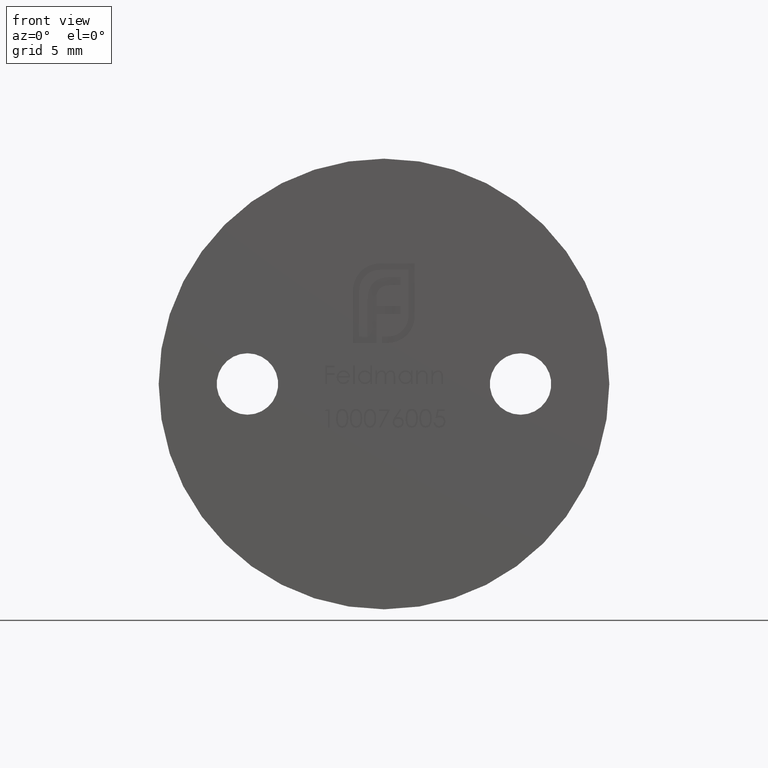
[diagram: clean part render]
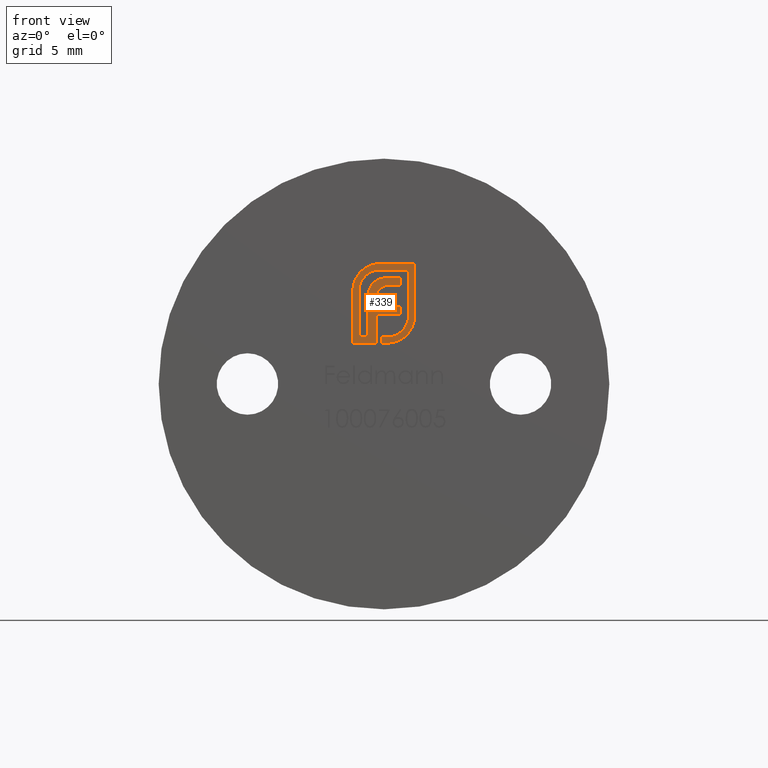
[diagram: same view with one face highlighted and labeled with its STEP entity id]
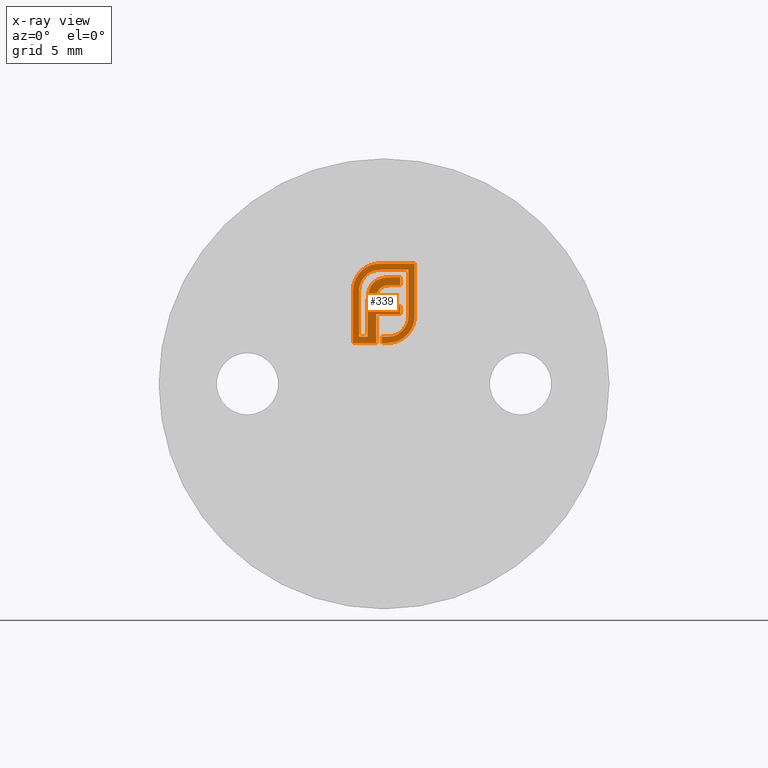
[diagram: x-ray of the same camera — body ghosted, the highlighted face saturated]
A machine part, front view. The second image highlights one B-rep face of the part: STEP entity #339.
The next image is the same camera in x-ray: the body ghosted, the highlighted face saturated — about 0% of this face is hidden behind the body in this view.
In plain terms, the highlighted planar face has unit normal (0, -1, 0).
Its self-contained STEP definition (entity closure, byte-faithful):
#53 = ORIENTED_EDGE ( 'NONE', *, *, #2313, .F. ) ;
#89 = CARTESIAN_POINT ( 'NONE',  ( 1.533706581315729345, 0.1000000000000000056, 4.130711595041846707 ) ) ;
#90 = CARTESIAN_POINT ( 'NONE',  ( -0.8595754606951256926, 0.1000000000000000056, 8.731280615815254720 ) ) ;
#132 = CARTESIAN_POINT ( 'NONE',  ( -0.2511997499500289166, 0.1000000000000000056, 7.028425111272786907 ) ) ;
#184 = ORIENTED_EDGE ( 'NONE', *, *, #8891, .F. ) ;
#196 = CARTESIAN_POINT ( 'NONE',  ( -0.2943272463131331729, 0.1000000000000000056, 6.988127464454253257 ) ) ;
#248 = VERTEX_POINT ( 'NONE', #5400 ) ;
#308 = CARTESIAN_POINT ( 'NONE',  ( -0.01749475157452858379, 0.1000000000000000056, 7.156752974107765120 ) ) ;
#339 = ADVANCED_FACE ( 'NONE', ( #10361 ), #9381, .T. ) ;
#352 = LINE ( 'NONE', #2891, #2618 ) ;
#359 = CARTESIAN_POINT ( 'NONE',  ( 0.3549111840445971500, 0.1000000000000000056, 7.219203199633334123 ) ) ;
#369 = LINE ( 'NONE', #8767, #4680 ) ;
#371 = CARTESIAN_POINT ( 'NONE',  ( 0.06181478889666359999, 0.1000000000000000056, 3.457196174480987150 ) ) ;
#375 = VERTEX_POINT ( 'NONE', #15595 ) ;
#395 = EDGE_CURVE ( 'NONE', #248, #3817, #12490, .T. ) ;
#459 = ORIENTED_EDGE ( 'NONE', *, *, #2235, .F. ) ;
#463 = CARTESIAN_POINT ( 'NONE',  ( -0.7802659202239338176, 0.1000000000000000056, 7.400513179379517581 ) ) ;
#591 = EDGE_CURVE ( 'NONE', #12907, #12661, #3924, .T. ) ;
#654 = ORIENTED_EDGE ( 'NONE', *, *, #9390, .F. ) ;
#663 = ORIENTED_EDGE ( 'NONE', *, *, #2294, .F. ) ;
#680 = VERTEX_POINT ( 'NONE', #13869 ) ;
#687 = EDGE_CURVE ( 'NONE', #14384, #13681, #3501, .T. ) ;
#694 = EDGE_CURVE ( 'NONE', #3641, #680, #4711, .T. ) ;
#732 = B_SPLINE_CURVE_WITH_KNOTS ( 'NONE', 3,
 ( #7549, #8552, #9751, #7660, #11372, #13810, #13667 ),
 .UNSPECIFIED., .F., .F.,
 ( 4, 1, 1, 1, 4 ),
 ( 0.000000000000000000, 0.2411211622112615915, 0.4851305330037717356, 0.7363631959406383709, 1.000000000000000000 ),
 .UNSPECIFIED. ) ;
#755 = CARTESIAN_POINT ( 'NONE',  ( -1.197807324469326806, 0.1000000000000000056, 3.457196174480987150 ) ) ;
#766 = CARTESIAN_POINT ( 'NONE',  ( -1.414593789907671706, 0.1000000000000000056, 8.465605682340873628 ) ) ;
#778 = EDGE_CURVE ( 'NONE', #11103, #5335, #7147, .T. ) ;
#805 = CARTESIAN_POINT ( 'NONE',  ( 0.7895964543970133143, 0.1000000000000000056, 7.219734079776062963 ) ) ;
#820 = ORIENTED_EDGE ( 'NONE', *, *, #5564, .F. ) ;
#837 = CARTESIAN_POINT ( 'NONE',  ( 2.200685975968466934, 0.1000000000000000056, 4.551491616197589352 ) ) ;
#882 = CARTESIAN_POINT ( 'NONE',  ( 1.131136071292682788, 0.1000000000000000056, 3.198364730874929229 ) ) ;
#907 = CARTESIAN_POINT ( 'NONE',  ( -1.886391188140328579, 0.1000000000000000056, 8.021008894316823401 ) ) ;
#1121 = ORIENTED_EDGE ( 'NONE', *, *, #12243, .F. ) ;
#1166 = ORIENTED_EDGE ( 'NONE', *, *, #591, .F. ) ;
#1203 = B_SPLINE_CURVE_WITH_KNOTS ( 'NONE', 3,
 ( #9292, #6969, #12932, #14181, #837, #14289, #2048 ),
 .UNSPECIFIED., .F., .F.,
 ( 4, 1, 1, 1, 4 ),
 ( 0.000000000000000000, 0.2525049582863197473, 0.5021773156323383613, 0.7501012456036268983, 1.000000000000000000 ),
 .UNSPECIFIED. ) ;
#1231 = CARTESIAN_POINT ( 'NONE',  ( 0.3918824352694182389, 0.1000000000000000056, 7.219734079776064739 ) ) ;
#1238 = CARTESIAN_POINT ( 'NONE',  ( 1.187310473524608501, 0.1000000000000000056, 5.109867039888031037 ) ) ;
#1416 = ORIENTED_EDGE ( 'NONE', *, *, #778, .F. ) ;
#1452 = CARTESIAN_POINT ( 'NONE',  ( -0.04536225042950945557, 0.1000000000000000056, 7.145672816739518041 ) ) ;
#1458 = LINE ( 'NONE', #5659, #15095 ) ;
#1624 = CARTESIAN_POINT ( 'NONE',  ( -1.710319768859262846, 0.1000000000000000056, 7.418931424541738373 ) ) ;
#1643 = CARTESIAN_POINT ( 'NONE',  ( -0.3549974557226163174, 0.1000000000000000056, 8.809824298173680290 ) ) ;
#1671 = CARTESIAN_POINT ( 'NONE',  ( 0.2740844413342655161, 0.1000000000000000056, 3.457196174480987150 ) ) ;
#1680 = CARTESIAN_POINT ( 'NONE',  ( 1.187310473524608501, 0.1000000000000000056, 5.404945183111729889 ) ) ;
#1821 = CARTESIAN_POINT ( 'NONE',  ( 0.3250984827990785475, 0.1000000000000000056, 3.458456206920311971 ) ) ;
#1832 = CARTESIAN_POINT ( 'NONE',  ( 0.2980672456303922746, 0.1000000000000000056, 7.815756469842717102 ) ) ;
#1878 = LINE ( 'NONE', #371, #11384 ) ;
#1980 = CARTESIAN_POINT ( 'NONE',  ( 1.785630977373454220, 0.1000000000000000056, 6.661068346162817733 ) ) ;
#2016 = LINE ( 'NONE', #13666, #2972 ) ;
#2048 = CARTESIAN_POINT ( 'NONE',  ( 2.163517611383251271, 0.1000000000000000056, 4.417074877536736999 ) ) ;
#2065 = DIRECTION ( 'NONE',  ( -2.734102772614910103E-15, -0.000000000000000000, 1.000000000000000000 ) ) ;
#2087 = CARTESIAN_POINT ( 'NONE',  ( 1.313036953868959911, 0.1000000000000000056, 3.303734612586362029 ) ) ;
#2120 = B_SPLINE_CURVE_WITH_KNOTS ( 'NONE', 3,
 ( #9413, #14355, #15578, #3492, #14415, #15623, #2497 ),
 .UNSPECIFIED., .F., .F.,
 ( 4, 1, 1, 1, 4 ),
 ( 0.000000000000000000, 0.2752367449667307842, 0.5313220627563629561, 0.7730509928784798923, 1.000000000000000000 ),
 .UNSPECIFIED. ) ;
#2146 = DIRECTION ( 'NONE',  ( 0.000000000000000000, -1.000000000000000000, 0.000000000000000000 ) ) ;
#2164 = VERTEX_POINT ( 'NONE', #5061 ) ;
#2235 = EDGE_CURVE ( 'NONE', #14204, #12907, #2506, .T. ) ;
#2294 = EDGE_CURVE ( 'NONE', #375, #2164, #2016, .T. ) ;
#2313 = EDGE_CURVE ( 'NONE', #10625, #7563, #4852, .T. ) ;
#2317 = VERTEX_POINT ( 'NONE', #9892 ) ;
#2387 = CARTESIAN_POINT ( 'NONE',  ( -2.261054889181854488, 0.1000000000000000056, 7.099617897534928446 ) ) ;
#2445 = CARTESIAN_POINT ( 'NONE',  ( -2.276650338231864801, 0.1000000000000000056, 6.841847445766267910 ) ) ;
#2460 = CARTESIAN_POINT ( 'NONE',  ( -0.7802659202239338176, 0.1000000000000000056, 7.400513179379517581 ) ) ;
#2497 = CARTESIAN_POINT ( 'NONE',  ( -1.095171448565431360, 0.1000000000000000056, 6.881502216001865513 ) ) ;
#2501 = CARTESIAN_POINT ( 'NONE',  ( -2.212494932037212259, 0.1000000000000000056, 7.347826189786742290 ) ) ;
#2506 = B_SPLINE_CURVE_WITH_KNOTS ( 'NONE', 3,
 ( #5337, #13766, #14903, #4087, #10025, #1624, #14858, #6495, #7610, #2945, #11313 ),
 .UNSPECIFIED., .F., .F.,
 ( 4, 1, 1, 1, 1, 1, 1, 1, 4 ),
 ( 0.000000000000000000, 0.1299147880206159289, 0.2554450878987835072, 0.3781545628213979215, 0.5004347043268618789, 0.6221840494551676981, 0.7449768315553531028, 0.8705846910948458195, 1.000000000000000000 ),
 .UNSPECIFIED. ) ;
#2509 = AXIS2_PLACEMENT_3D ( 'NONE', #5637, #2146, #14233 ) ;
#2548 = EDGE_CURVE ( 'NONE', #14227, #5206, #9002, .T. ) ;
#2585 = VECTOR ( 'NONE', #15410, 1000.000000000000000 ) ;
#2618 = VECTOR ( 'NONE', #7885, 1000.000000000000000 ) ;
#2670 = ORIENTED_EDGE ( 'NONE', *, *, #7001, .F. ) ;
#2680 = VERTEX_POINT ( 'NONE', #14488 ) ;
#2810 = CARTESIAN_POINT ( 'NONE',  ( -1.095171448565431360, 0.1000000000000000056, 6.881502216001865513 ) ) ;
#2891 = CARTESIAN_POINT ( 'NONE',  ( -0.5679962677863316101, 0.1000000000000000056, 4.283531607184509760 ) ) ;
#2921 = EDGE_CURVE ( 'NONE', #11710, #15426, #10017, .T. ) ;
#2945 = CARTESIAN_POINT ( 'NONE',  ( -1.818194131311550832, 0.1000000000000000056, 6.892861487231079387 ) ) ;
#2972 = VECTOR ( 'NONE', #4135, 1000.000000000000000 ) ;
#2989 = CARTESIAN_POINT ( 'NONE',  ( 0.3918824352694182389, 0.1000000000000000056, 7.219734079776064739 ) ) ;
#3005 = CARTESIAN_POINT ( 'NONE',  ( 0.1034013256918231843, 0.1000000000000000056, 7.794583868466728127 ) ) ;
#3048 = CARTESIAN_POINT ( 'NONE',  ( -0.5679962677863316101, 0.1000000000000000056, 6.243526941917422413 ) ) ;
#3059 = EDGE_CURVE ( 'NONE', #2680, #11710, #3832, .T. ) ;
#3090 = CARTESIAN_POINT ( 'NONE',  ( 1.943083741544202381, 0.1000000000000000056, 3.936552367623044280 ) ) ;
#3091 = CARTESIAN_POINT ( 'NONE',  ( 0.2740844413342655161, 0.1000000000000000056, 3.457196174480987150 ) ) ;
#3093 = CARTESIAN_POINT ( 'NONE',  ( -1.020265024799605014, 0.1000000000000000056, 8.180686189883639159 ) ) ;
#3096 = CARTESIAN_POINT ( 'NONE',  ( 1.453577762708337939, 0.1000000000000000056, 3.390239697436863597 ) ) ;
#3166 = VECTOR ( 'NONE', #13396, 1000.000000000000000 ) ;
#3188 = CARTESIAN_POINT ( 'NONE',  ( 1.106387187045389631, 0.1000000000000000056, 3.704793545018288281 ) ) ;
#3417 = VECTOR ( 'NONE', #14645, 1000.000000000000000 ) ;
#3492 = CARTESIAN_POINT ( 'NONE',  ( -1.175144119213104910, 0.1000000000000000056, 6.535361911055932893 ) ) ;
#3501 = B_SPLINE_CURVE_WITH_KNOTS ( 'NONE', 3,
 ( #7613, #12557, #9010, #7809, #11373, #8814, #463 ),
 .UNSPECIFIED., .F., .F.,
 ( 4, 1, 1, 1, 4 ),
 ( 0.000000000000000000, 0.2650465622674541000, 0.5182727197139305186, 0.7624607574988783165, 1.000000000000000000 ),
 .UNSPECIFIED. ) ;
#3530 = ORIENTED_EDGE ( 'NONE', *, *, #11169, .F. ) ;
#3545 = CARTESIAN_POINT ( 'NONE',  ( 2.012737442929558807, 0.1000000000000000056, 4.048426834626967619 ) ) ;
#3641 = VERTEX_POINT ( 'NONE', #1231 ) ;
#3763 = VERTEX_POINT ( 'NONE', #14318 ) ;
#3769 = CARTESIAN_POINT ( 'NONE',  ( -2.276232496197875044, 0.1000000000000000056, 6.885432932975001030 ) ) ;
#3785 = VECTOR ( 'NONE', #9370, 1000.000000000000000 ) ;
#3817 = VERTEX_POINT ( 'NONE', #11421 ) ;
#3832 = B_SPLINE_CURVE_WITH_KNOTS ( 'NONE', 3,
 ( #6944, #7109, #13059, #8219, #3545, #9522, #13006 ),
 .UNSPECIFIED., .F., .F.,
 ( 4, 1, 1, 1, 4 ),
 ( 0.000000000000000000, 0.2531688454537565636, 0.5035614958825502807, 0.7514299623983494714, 1.000000000000000000 ),
 .UNSPECIFIED. ) ;
#3845 = CARTESIAN_POINT ( 'NONE',  ( 1.785630977373454220, 0.1000000000000000056, 4.968742710520175798 ) ) ;
#3859 = DIRECTION ( 'NONE',  ( 0.000000000000000000, -0.000000000000000000, -1.000000000000000000 ) ) ;
#3924 = LINE ( 'NONE', #13182, #9218 ) ;
#3963 = CARTESIAN_POINT ( 'NONE',  ( -2.276650338231864801, 0.1000000000000000056, 6.841847445766267910 ) ) ;
#3973 = CARTESIAN_POINT ( 'NONE',  ( -0.3160718451131333540, 0.1000000000000000056, 6.967809657102867149 ) ) ;
#4052 = CARTESIAN_POINT ( 'NONE',  ( -0.5670404246736944209, 0.1000000000000000056, 6.356691832203200221 ) ) ;
#4081 = VERTEX_POINT ( 'NONE', #10736 ) ;
#4087 = CARTESIAN_POINT ( 'NONE',  ( -1.571856793213572523, 0.1000000000000000056, 7.674150191477392191 ) ) ;
#4135 = DIRECTION ( 'NONE',  ( -1.000000000000000000, -0.000000000000000000, 2.788784828067216714E-14 ) ) ;
#4198 = CARTESIAN_POINT ( 'NONE',  ( -0.2449265220433880230, 0.1000000000000000056, 7.715418707721015679 ) ) ;
#4329 = ORIENTED_EDGE ( 'NONE', *, *, #2548, .F. ) ;
#4364 = LINE ( 'NONE', #13471, #6852 ) ;
#4430 = CARTESIAN_POINT ( 'NONE',  ( 0.01343570162570312775, 0.1000000000000000056, 7.166733782436140565 ) ) ;
#4442 = CARTESIAN_POINT ( 'NONE',  ( -0.5679962677863316101, 0.1000000000000000056, 2.999999999999997780 ) ) ;
#4462 = EDGE_CURVE ( 'NONE', #5206, #11279, #11364, .T. ) ;
#4476 = ORIENTED_EDGE ( 'NONE', *, *, #5519, .F. ) ;
#4477 = VECTOR ( 'NONE', #6596, 1000.000000000000000 ) ;
#4485 = CARTESIAN_POINT ( 'NONE',  ( -2.016561698157220306, 0.1000000000000000056, 7.809890366223464220 ) ) ;
#4544 = EDGE_CURVE ( 'NONE', #6865, #10625, #14583, .T. ) ;
#4547 = CARTESIAN_POINT ( 'NONE',  ( -1.347095871238629394, 0.1000000000000000056, 8.510846745976204275 ) ) ;
#4551 = VECTOR ( 'NONE', #7068, 1000.000000000000000 ) ;
#4575 = CARTESIAN_POINT ( 'NONE',  ( 1.016972281842246861, 0.1000000000000000056, 3.144449828605777597 ) ) ;
#4580 = ORIENTED_EDGE ( 'NONE', *, *, #4462, .F. ) ;
#4680 = VECTOR ( 'NONE', #6292, 1000.000000000000000 ) ;
#4693 = ORIENTED_EDGE ( 'NONE', *, *, #9940, .F. ) ;
#4711 = B_SPLINE_CURVE_WITH_KNOTS ( 'NONE', 3,
 ( #2989, #359, #15261, #5526, #6695, #4430, #6848 ),
 .UNSPECIFIED., .F., .F.,
 ( 4, 1, 1, 1, 4 ),
 ( 0.000000000000000000, 0.2663974462967133028, 0.5202005568595402529, 0.7659044003744396312, 1.000000000000000000 ),
 .UNSPECIFIED. ) ;
#4780 = VERTEX_POINT ( 'NONE', #3048 ) ;
#4812 = CARTESIAN_POINT ( 'NONE',  ( -1.197807324469326806, 0.1000000000000000056, 6.140891066013526967 ) ) ;
#4830 = ORIENTED_EDGE ( 'NONE', *, *, #7114, .F. ) ;
#4852 = LINE ( 'NONE', #8782, #8069 ) ;
#4895 = CARTESIAN_POINT ( 'NONE',  ( -0.3160718451131333540, 0.1000000000000000056, 6.967809657102867149 ) ) ;
#4899 = CARTESIAN_POINT ( 'NONE',  ( 1.187310473524608501, 0.1000000000000000056, 7.219734079776064739 ) ) ;
#4904 = CARTESIAN_POINT ( 'NONE',  ( 1.372398133326241165, 0.1000000000000000056, 3.935465311587731385 ) ) ;
#4912 = ORIENTED_EDGE ( 'NONE', *, *, #5210, .F. ) ;
#4954 = EDGE_CURVE ( 'NONE', #11371, #9696, #12596, .T. ) ;
#5061 = CARTESIAN_POINT ( 'NONE',  ( -0.3079076277116873928, 0.1000000000000000056, 8.353393981805457003 ) ) ;
#5194 = CARTESIAN_POINT ( 'NONE',  ( -0.3079076277116873928, 0.1000000000000000056, 8.810590156286446373 ) ) ;
#5206 = VERTEX_POINT ( 'NONE', #8032 ) ;
#5210 = EDGE_CURVE ( 'NONE', #15426, #10789, #15204, .T. ) ;
#5295 = CARTESIAN_POINT ( 'NONE',  ( 1.242127361791461881, 0.1000000000000000056, 3.260088640074642274 ) ) ;
#5323 = VERTEX_POINT ( 'NONE', #1238 ) ;
#5335 = VERTEX_POINT ( 'NONE', #5602 ) ;
#5337 = CARTESIAN_POINT ( 'NONE',  ( -1.378586424072778982, 0.1000000000000000056, 7.904362024725913649 ) ) ;
#5348 = CARTESIAN_POINT ( 'NONE',  ( -0.5050151621180319905, 0.1000000000000000056, 6.661068346162815956 ) ) ;
#5354 = VERTEX_POINT ( 'NONE', #9238 ) ;
#5383 = CARTESIAN_POINT ( 'NONE',  ( -1.819454163750875653, 0.1000000000000000056, 6.841847445766267910 ) ) ;
#5400 = CARTESIAN_POINT ( 'NONE',  ( 2.242827151854442924, 0.1000000000000000056, 8.810590156286446373 ) ) ;
#5427 = CARTESIAN_POINT ( 'NONE',  ( -0.7505423271630039528, 0.1000000000000000056, 8.292870966762775353 ) ) ;
#5475 = CARTESIAN_POINT ( 'NONE',  ( 0.4256257125339919511, 0.1000000000000000056, 3.460939201148259148 ) ) ;
#5477 = CARTESIAN_POINT ( 'NONE',  ( -1.341185026644131639, 0.1000000000000000056, 7.940161137758245502 ) ) ;
#5519 = EDGE_CURVE ( 'NONE', #14847, #4780, #8916, .T. ) ;
#5526 = CARTESIAN_POINT ( 'NONE',  ( 0.1770606838264636718, 0.1000000000000000056, 7.205937893213495649 ) ) ;
#5564 = EDGE_CURVE ( 'NONE', #2317, #13855, #1878, .T. ) ;
#5602 = CARTESIAN_POINT ( 'NONE',  ( 1.187310473524608501, 0.1000000000000000056, 5.700023326335431406 ) ) ;
#5637 = CARTESIAN_POINT ( 'NONE',  ( -0.5866176055090125407, 0.1000000000000000056, 8.790936477799027315 ) ) ;
#5659 = CARTESIAN_POINT ( 'NONE',  ( -1.197807324469326806, 0.1000000000000000056, 4.799043620247256392 ) ) ;
#5683 = CARTESIAN_POINT ( 'NONE',  ( 1.336599020293911089, 0.1000000000000000056, 3.898063914159083598 ) ) ;
#5691 = ORIENTED_EDGE ( 'NONE', *, *, #15034, .F. ) ;
#5864 = VERTEX_POINT ( 'NONE', #755 ) ;
#5877 = EDGE_CURVE ( 'NONE', #7563, #3641, #14952, .T. ) ;
#5995 = CARTESIAN_POINT ( 'NONE',  ( -1.508630744110101451, 0.1000000000000000056, 3.457196174480988038 ) ) ;
#6170 = CARTESIAN_POINT ( 'NONE',  ( 1.725107962330771905, 0.1000000000000000056, 4.526108011068860293 ) ) ;
#6197 = CARTESIAN_POINT ( 'NONE',  ( -0.3776627960508726622, 0.1000000000000000056, 6.903107813290450423 ) ) ;
#6214 = VERTEX_POINT ( 'NONE', #6255 ) ;
#6219 = CARTESIAN_POINT ( 'NONE',  ( -0.1009018990478287858, 0.1000000000000000056, 7.123590173081017163 ) ) ;
#6255 = CARTESIAN_POINT ( 'NONE',  ( 1.336599020293911089, 0.1000000000000000056, 3.898063914159083598 ) ) ;
#6292 = DIRECTION ( 'NONE',  ( 7.855731910048533096E-15, -0.000000000000000000, 1.000000000000000000 ) ) ;
#6310 = B_SPLINE_CURVE_WITH_KNOTS ( 'NONE', 3,
 ( #3973, #6365, #6197, #7430, #8792, #12422, #13544 ),
 .UNSPECIFIED., .F., .F.,
 ( 4, 1, 1, 1, 4 ),
 ( 0.000000000000000000, 0.2455891591026250209, 0.4905057002791295973, 0.7406289399192090839, 1.000000000000000000 ),
 .UNSPECIFIED. ) ;
#6336 = CARTESIAN_POINT ( 'NONE',  ( -0.1789368517629400246, 0.1000000000000000056, 7.080346817134354431 ) ) ;
#6338 = DIRECTION ( 'NONE',  ( 6.485546111784117558E-15, -0.000000000000000000, -1.000000000000000000 ) ) ;
#6352 = CARTESIAN_POINT ( 'NONE',  ( -0.7251587220342735618, 0.1000000000000000056, 8.768448980400469495 ) ) ;
#6365 = CARTESIAN_POINT ( 'NONE',  ( -0.3366209219832460020, 0.1000000000000000056, 6.946222668399227196 ) ) ;
#6396 = CARTESIAN_POINT ( 'NONE',  ( -0.5679962677863316101, 0.1000000000000000056, 6.243526941917422413 ) ) ;
#6406 = CARTESIAN_POINT ( 'NONE',  ( -0.4486488579944983290, 0.1000000000000000056, 8.808301173345428836 ) ) ;
#6495 = CARTESIAN_POINT ( 'NONE',  ( -1.793520812474885373, 0.1000000000000000056, 7.140854611986272360 ) ) ;
#6535 = CARTESIAN_POINT ( 'NONE',  ( 0.9674597620713779600, 0.1000000000000000056, 8.810590156286446373 ) ) ;
#6553 = CARTESIAN_POINT ( 'NONE',  ( 1.187310473524608723, 0.1000000000000000056, 7.818054583624912013 ) ) ;
#6596 = DIRECTION ( 'NONE',  ( 5.871125953825789565E-15, -0.000000000000000000, -1.000000000000000000 ) ) ;
#6643 = VECTOR ( 'NONE', #10562, 1000.000000000000000 ) ;
#6695 = CARTESIAN_POINT ( 'NONE',  ( 0.07683037561910883995, 0.1000000000000000056, 7.187190323634290223 ) ) ;
#6709 = CARTESIAN_POINT ( 'NONE',  ( 0.4330242868184525085, 0.1000000000000000056, 7.817272224833719640 ) ) ;
#6712 = DIRECTION ( 'NONE',  ( -1.000000000000000000, -0.000000000000000000, 1.640461663568954739E-14 ) ) ;
#6797 = CARTESIAN_POINT ( 'NONE',  ( -0.8876146951484824577, 0.1000000000000000056, 8.243443540006346382 ) ) ;
#6801 = CARTESIAN_POINT ( 'NONE',  ( 1.943083741544202381, 0.1000000000000000056, 3.936552367623044280 ) ) ;
#6848 = CARTESIAN_POINT ( 'NONE',  ( -0.01749475157452858379, 0.1000000000000000056, 7.156752974107765120 ) ) ;
#6852 = VECTOR ( 'NONE', #14704, 1000.000000000000000 ) ;
#6865 = VERTEX_POINT ( 'NONE', #11296 ) ;
#6922 = CARTESIAN_POINT ( 'NONE',  ( -0.3160718451131333540, 0.1000000000000000056, 6.967809657102867149 ) ) ;
#6944 = CARTESIAN_POINT ( 'NONE',  ( 2.163517611383251271, 0.1000000000000000056, 4.417074877536736999 ) ) ;
#6969 = CARTESIAN_POINT ( 'NONE',  ( 2.242061293741679062, 0.1000000000000000056, 4.921652882509246041 ) ) ;
#7001 = EDGE_CURVE ( 'NONE', #3817, #2680, #1203, .T. ) ;
#7002 = ORIENTED_EDGE ( 'NONE', *, *, #8993, .F. ) ;
#7038 = ORIENTED_EDGE ( 'NONE', *, *, #7946, .F. ) ;
#7068 = DIRECTION ( 'NONE',  ( -1.000000000000000000, -0.000000000000000000, 0.000000000000000000 ) ) ;
#7079 = CARTESIAN_POINT ( 'NONE',  ( 0.4038736009009617489, 0.1000000000000000056, 3.001244252844150751 ) ) ;
#7109 = CARTESIAN_POINT ( 'NONE',  ( 2.149788476460243736, 0.1000000000000000056, 4.374455488909339884 ) ) ;
#7114 = EDGE_CURVE ( 'NONE', #6214, #7162, #14200, .T. ) ;
#7143 = VECTOR ( 'NONE', #7859, 1000.000000000000000 ) ;
#7147 = LINE ( 'NONE', #12842, #9802 ) ;
#7162 = VERTEX_POINT ( 'NONE', #13615 ) ;
#7165 = ORIENTED_EDGE ( 'NONE', *, *, #14147, .F. ) ;
#7304 = EDGE_CURVE ( 'NONE', #2164, #14204, #10856, .T. ) ;
#7345 = CARTESIAN_POINT ( 'NONE',  ( -1.232859493854133293, 0.1000000000000000056, 8.580555647194918478 ) ) ;
#7362 = CARTESIAN_POINT ( 'NONE',  ( -2.276650338231864801, 0.1000000000000000056, 2.999999999999997780 ) ) ;
#7393 = VECTOR ( 'NONE', #12590, 1000.000000000000000 ) ;
#7407 = CARTESIAN_POINT ( 'NONE',  ( 1.781688143812576453, 0.1000000000000000056, 4.816856741634313543 ) ) ;
#7430 = CARTESIAN_POINT ( 'NONE',  ( -0.4265924718571025842, 0.1000000000000000056, 6.827653029397886542 ) ) ;
#7456 = CARTESIAN_POINT ( 'NONE',  ( 1.784307047698746596, 0.1000000000000000056, 4.917742246444058551 ) ) ;
#7549 = CARTESIAN_POINT ( 'NONE',  ( -0.7802659202239338176, 0.1000000000000000056, 7.400513179379517581 ) ) ;
#7560 = CARTESIAN_POINT ( 'NONE',  ( -0.5360362378156831031, 0.1000000000000000056, 6.566535944394662039 ) ) ;
#7563 = VERTEX_POINT ( 'NONE', #4899 ) ;
#7610 = CARTESIAN_POINT ( 'NONE',  ( -1.815711137083603210, 0.1000000000000000056, 6.993388716965994512 ) ) ;
#7613 = CARTESIAN_POINT ( 'NONE',  ( -1.095171448565431360, 0.1000000000000000056, 6.881502216001865513 ) ) ;
#7635 = B_SPLINE_CURVE_WITH_KNOTS ( 'NONE', 3,
 ( #4198, #15230, #11681, #3005, #1832, #6709, #7976 ),
 .UNSPECIFIED., .F., .F.,
 ( 4, 1, 1, 1, 4 ),
 ( 0.000000000000000000, 0.2252149288326732723, 0.4659087912857238223, 0.7243281698455825701, 1.000000000000000000 ),
 .UNSPECIFIED. ) ;
#7660 = CARTESIAN_POINT ( 'NONE',  ( -0.5397900108170988753, 0.1000000000000000056, 7.588625281920203136 ) ) ;
#7676 = CARTESIAN_POINT ( 'NONE',  ( -0.5876782018867705570, 0.1000000000000000056, 8.792037863360508965 ) ) ;
#7713 = CARTESIAN_POINT ( 'NONE',  ( -0.5676706507445863359, 0.1000000000000000056, 6.282077637441725315 ) ) ;
#7721 = CARTESIAN_POINT ( 'NONE',  ( -0.8595754606951256926, 0.1000000000000000056, 8.731280615815254720 ) ) ;
#7809 = CARTESIAN_POINT ( 'NONE',  ( -0.9636042539160307729, 0.1000000000000000056, 7.167755094863467846 ) ) ;
#7814 = CARTESIAN_POINT ( 'NONE',  ( -0.3589080917878029742, 0.1000000000000000056, 8.352070052130747158 ) ) ;
#7859 = DIRECTION ( 'NONE',  ( 0.000000000000000000, -0.000000000000000000, 1.000000000000000000 ) ) ;
#7878 = EDGE_CURVE ( 'NONE', #9696, #14227, #14303, .T. ) ;
#7885 = DIRECTION ( 'NONE',  ( 0.000000000000000000, -0.000000000000000000, -1.000000000000000000 ) ) ;
#7930 = ORIENTED_EDGE ( 'NONE', *, *, #5877, .F. ) ;
#7946 = EDGE_CURVE ( 'NONE', #13093, #14384, #2120, .T. ) ;
#7961 = CARTESIAN_POINT ( 'NONE',  ( 1.226993514336091273, 0.1000000000000000056, 3.792781942074100687 ) ) ;
#7963 = CARTESIAN_POINT ( 'NONE',  ( -1.145938743190012765, 0.1000000000000000056, 8.101469585747731017 ) ) ;
#7976 = CARTESIAN_POINT ( 'NONE',  ( 0.5026825285747602567, 0.1000000000000000056, 7.818054583624910236 ) ) ;
#8032 = CARTESIAN_POINT ( 'NONE',  ( -0.8595754606951256926, 0.1000000000000000056, 8.731280615815254720 ) ) ;
#8049 = CARTESIAN_POINT ( 'NONE',  ( -1.972864917514406402, 0.1000000000000000056, 7.880760488884365422 ) ) ;
#8069 = VECTOR ( 'NONE', #3859, 1000.000000000000000 ) ;
#8121 = CARTESIAN_POINT ( 'NONE',  ( -1.819454163750875653, 0.1000000000000000056, 3.457196174480987150 ) ) ;
#8130 = ORIENTED_EDGE ( 'NONE', *, *, #12414, .F. ) ;
#8186 = CARTESIAN_POINT ( 'NONE',  ( 0.8449965010496843787, 0.1000000000000000056, 7.818054583624910236 ) ) ;
#8219 = CARTESIAN_POINT ( 'NONE',  ( 2.070122900983577985, 0.1000000000000000056, 4.167493066460694173 ) ) ;
#8338 = VERTEX_POINT ( 'NONE', #6922 ) ;
#8429 = CARTESIAN_POINT ( 'NONE',  ( 2.242827151854443368, 0.1000000000000000056, 6.889666433403311530 ) ) ;
#8552 = CARTESIAN_POINT ( 'NONE',  ( -0.7435031232064650553, 0.1000000000000000056, 7.435136001651482474 ) ) ;
#8721 = EDGE_CURVE ( 'NONE', #10203, #11371, #369, .T. ) ;
#8767 = CARTESIAN_POINT ( 'NONE',  ( -2.276650338231865245, 0.1000000000000000056, 4.920923722883132179 ) ) ;
#8782 = CARTESIAN_POINT ( 'NONE',  ( 1.187310473524608501, 0.1000000000000000056, 7.518894331700487932 ) ) ;
#8792 = CARTESIAN_POINT ( 'NONE',  ( -0.4730527231282138367, 0.1000000000000000056, 6.748728106881189071 ) ) ;
#8814 = CARTESIAN_POINT ( 'NONE',  ( -0.8136525530193031708, 0.1000000000000000056, 7.365255758720715917 ) ) ;
#8841 = LINE ( 'NONE', #13158, #2585 ) ;
#8891 = EDGE_CURVE ( 'NONE', #5335, #5323, #15304, .T. ) ;
#8916 = B_SPLINE_CURVE_WITH_KNOTS ( 'NONE', 3,
 ( #5348, #14969, #7560, #13679, #4052, #7713, #6396 ),
 .UNSPECIFIED., .F., .F.,
 ( 4, 1, 1, 1, 4 ),
 ( 0.000000000000000000, 0.2296577939907749610, 0.4728894664265901882, 0.7276593582172843355, 0.9999999999999998890 ),
 .UNSPECIFIED. ) ;
#8920 = ORIENTED_EDGE ( 'NONE', *, *, #7878, .F. ) ;
#8993 = EDGE_CURVE ( 'NONE', #13855, #6214, #13108, .T. ) ;
#9002 = B_SPLINE_CURVE_WITH_KNOTS ( 'NONE', 3,
 ( #9653, #13242, #7345, #14538, #13402, #14388, #90 ),
 .UNSPECIFIED., .F., .F.,
 ( 4, 1, 1, 1, 4 ),
 ( 0.000000000000000000, 0.2494004055988068569, 0.4982698082868715628, 0.7477365097776039748, 1.000000000000000000 ),
 .UNSPECIFIED. ) ;
#9010 = CARTESIAN_POINT ( 'NONE',  ( -1.039081443232680257, 0.1000000000000000056, 7.031389533648563450 ) ) ;
#9064 = CARTESIAN_POINT ( 'NONE',  ( -0.3079076277116873928, 0.1000000000000000056, 8.353393981805457003 ) ) ;
#9123 = CARTESIAN_POINT ( 'NONE',  ( -0.4597935965975499251, 0.1000000000000000056, 8.349451148244577681 ) ) ;
#9218 = VECTOR ( 'NONE', #6338, 1000.000000000000000 ) ;
#9234 = CARTESIAN_POINT ( 'NONE',  ( 1.205026075271273367, 0.1000000000000000056, 3.239456062238367462 ) ) ;
#9238 = CARTESIAN_POINT ( 'NONE',  ( -0.2449265220433880230, 0.1000000000000000056, 7.715418707721015679 ) ) ;
#9271 = CARTESIAN_POINT ( 'NONE',  ( -2.016561698157220306, 0.1000000000000000056, 7.809890366223464220 ) ) ;
#9292 = CARTESIAN_POINT ( 'NONE',  ( 2.242827151854442924, 0.1000000000000000056, 4.968742710520175798 ) ) ;
#9316 = CARTESIAN_POINT ( 'NONE',  ( -1.549157282780650569, 0.1000000000000000056, 8.375413337686381965 ) ) ;
#9323 = CARTESIAN_POINT ( 'NONE',  ( 1.640146879085662368, 0.1000000000000000056, 3.551733432720264094 ) ) ;
#9370 = DIRECTION ( 'NONE',  ( 0.000000000000000000, -0.000000000000000000, 1.000000000000000000 ) ) ;
#9381 = PLANE ( 'NONE',  #2509 ) ;
#9390 = EDGE_CURVE ( 'NONE', #3763, #11438, #352, .T. ) ;
#9413 = CARTESIAN_POINT ( 'NONE',  ( -1.197807324469326806, 0.1000000000000000056, 6.140891066013526967 ) ) ;
#9498 = CARTESIAN_POINT ( 'NONE',  ( 0.2740844413342655161, 0.1000000000000000056, 2.999999999999997780 ) ) ;
#9522 = CARTESIAN_POINT ( 'NONE',  ( 1.966323506195089221, 0.1000000000000000056, 3.973878973846460383 ) ) ;
#9568 = CARTESIAN_POINT ( 'NONE',  ( 0.2740844413342655161, 0.1000000000000000056, 2.999999999999997780 ) ) ;
#9571 = EDGE_CURVE ( 'NONE', #7162, #375, #15660, .T. ) ;
#9613 = VECTOR ( 'NONE', #10431, 1000.000000000000000 ) ;
#9628 = CARTESIAN_POINT ( 'NONE',  ( -2.275406085387712718, 0.1000000000000000056, 6.971636605332964365 ) ) ;
#9653 = CARTESIAN_POINT ( 'NONE',  ( -1.347095871238629394, 0.1000000000000000056, 8.510846745976204275 ) ) ;
#9668 = CARTESIAN_POINT ( 'NONE',  ( -0.3079076277116873928, 0.1000000000000000056, 8.810590156286446373 ) ) ;
#9696 = VERTEX_POINT ( 'NONE', #9271 ) ;
#9705 = CARTESIAN_POINT ( 'NONE',  ( 1.336599020293911089, 0.1000000000000000056, 3.898063914159083598 ) ) ;
#9738 = CARTESIAN_POINT ( 'NONE',  ( -2.242570785884948847, 0.1000000000000000056, 7.225409501822393388 ) ) ;
#9751 = CARTESIAN_POINT ( 'NONE',  ( -0.6695371753475710674, 0.1000000000000000056, 7.504796366875569724 ) ) ;
#9789 = CARTESIAN_POINT ( 'NONE',  ( -2.016561698157220306, 0.1000000000000000056, 7.809890366223464220 ) ) ;
#9802 = VECTOR ( 'NONE', #11572, 1000.000000000000000 ) ;
#9892 = CARTESIAN_POINT ( 'NONE',  ( -0.1504548635409383717, 0.1000000000000000056, 3.457196174480987150 ) ) ;
#9940 = EDGE_CURVE ( 'NONE', #5864, #13093, #1458, .T. ) ;
#10017 = B_SPLINE_CURVE_WITH_KNOTS ( 'NONE', 3,
 ( #6801, #15176, #10489, #9323, #3096, #2087, #14163 ),
 .UNSPECIFIED., .F., .F.,
 ( 4, 1, 1, 1, 4 ),
 ( 0.000000000000000000, 0.2502112839297327418, 0.4976763372912433314, 0.7465535718222463535, 1.000000000000000000 ),
 .UNSPECIFIED. ) ;
#10025 = CARTESIAN_POINT ( 'NONE',  ( -1.649404134532545863, 0.1000000000000000056, 7.550226223210578347 ) ) ;
#10044 = LINE ( 'NONE', #14272, #3785 ) ;
#10121 = ORIENTED_EDGE ( 'NONE', *, *, #8721, .F. ) ;
#10129 = ORIENTED_EDGE ( 'NONE', *, *, #15662, .F. ) ;
#10203 = VERTEX_POINT ( 'NONE', #7362 ) ;
#10361 = FACE_OUTER_BOUND ( 'NONE', #13545, .T. ) ;
#10364 = CARTESIAN_POINT ( 'NONE',  ( -1.378586424072778982, 0.1000000000000000056, 7.904362024725913649 ) ) ;
#10426 = VECTOR ( 'NONE', #6712, 1000.000000000000000 ) ;
#10431 = DIRECTION ( 'NONE',  ( -1.000000000000000000, -0.000000000000000000, -1.770657033693469798E-14 ) ) ;
#10437 = CARTESIAN_POINT ( 'NONE',  ( -1.726226621821118634, 0.1000000000000000056, 8.207563492515658865 ) ) ;
#10442 = CARTESIAN_POINT ( 'NONE',  ( 0.9824632187785791171, 0.1000000000000000056, 3.627246203699316940 ) ) ;
#10489 = CARTESIAN_POINT ( 'NONE',  ( 1.808026619911431876, 0.1000000000000000056, 3.731250260253980766 ) ) ;
#10562 = DIRECTION ( 'NONE',  ( 1.000000000000000000, -0.000000000000000000, 0.000000000000000000 ) ) ;
#10625 = VERTEX_POINT ( 'NONE', #6553 ) ;
#10635 = CARTESIAN_POINT ( 'NONE',  ( -0.5679962677863316101, 0.1000000000000000056, 5.700023326335431406 ) ) ;
#10736 = CARTESIAN_POINT ( 'NONE',  ( -0.1504548635409383994, 0.1000000000000000056, 2.999999999999998224 ) ) ;
#10770 = ORIENTED_EDGE ( 'NONE', *, *, #4954, .F. ) ;
#10782 = ORIENTED_EDGE ( 'NONE', *, *, #4544, .F. ) ;
#10789 = VERTEX_POINT ( 'NONE', #9568 ) ;
#10856 = B_SPLINE_CURVE_WITH_KNOTS ( 'NONE', 3,
 ( #9064, #7814, #9123, #12706, #5427, #6797, #3093, #7963, #15066, #5477, #14068 ),
 .UNSPECIFIED., .F., .F.,
 ( 4, 1, 1, 1, 1, 1, 1, 1, 4 ),
 ( 0.000000000000000000, 0.1281924671261274740, 0.2535812564278780989, 0.3754453157299563748, 0.4969638611844701126, 0.6193912034695903124, 0.7436315793729395551, 0.8699315812134839065, 1.000000000000000000 ),
 .UNSPECIFIED. ) ;
#10869 = CARTESIAN_POINT ( 'NONE',  ( -2.078285607356932019, 0.1000000000000000056, 7.698899075724686902 ) ) ;
#10941 = CARTESIAN_POINT ( 'NONE',  ( 0.3176699285429986919, 0.1000000000000000056, 3.000417842033988425 ) ) ;
#10980 = CARTESIAN_POINT ( 'NONE',  ( -2.132200509626086316, 0.1000000000000000056, 7.584735286274248978 ) ) ;
#11003 = CARTESIAN_POINT ( 'NONE',  ( 1.612923185451636598, 0.1000000000000000056, 4.256385313432258677 ) ) ;
#11099 = CARTESIAN_POINT ( 'NONE',  ( -0.5050151621180319905, 0.1000000000000000056, 6.661068346162815956 ) ) ;
#11103 = VERTEX_POINT ( 'NONE', #10635 ) ;
#11106 = CARTESIAN_POINT ( 'NONE',  ( 1.760278978522078930, 0.1000000000000000056, 4.668727680216066211 ) ) ;
#11169 = EDGE_CURVE ( 'NONE', #4780, #11103, #8841, .T. ) ;
#11279 = VERTEX_POINT ( 'NONE', #9668 ) ;
#11296 = CARTESIAN_POINT ( 'NONE',  ( 0.5026825285747602567, 0.1000000000000000056, 7.818054583624910236 ) ) ;
#11313 = CARTESIAN_POINT ( 'NONE',  ( -1.819454163750875653, 0.1000000000000000056, 6.841847445766267910 ) ) ;
#11364 = B_SPLINE_CURVE_WITH_KNOTS ( 'NONE', 3,
 ( #7721, #14926, #6352, #7676, #6406, #1643, #5194 ),
 .UNSPECIFIED., .F., .F.,
 ( 4, 1, 1, 1, 4 ),
 ( 0.000000000000000000, 0.2498987543963728797, 0.4978226843676617497, 0.7474950417136814185, 0.9999999999999998890 ),
 .UNSPECIFIED. ) ;
#11371 = VERTEX_POINT ( 'NONE', #3963 ) ;
#11372 = CARTESIAN_POINT ( 'NONE',  ( -0.3993967784394190090, 0.1000000000000000056, 7.663368840172077867 ) ) ;
#11373 = CARTESIAN_POINT ( 'NONE',  ( -0.8813603205657416506, 0.1000000000000000056, 7.293754051528962279 ) ) ;
#11384 = VECTOR ( 'NONE', #13821, 1000.000000000000000 ) ;
#11421 = CARTESIAN_POINT ( 'NONE',  ( 2.242827151854442924, 0.1000000000000000056, 4.968742710520175798 ) ) ;
#11438 = VERTEX_POINT ( 'NONE', #4442 ) ;
#11518 = ORIENTED_EDGE ( 'NONE', *, *, #9571, .F. ) ;
#11572 = DIRECTION ( 'NONE',  ( 1.000000000000000000, -0.000000000000000000, 0.000000000000000000 ) ) ;
#11576 = CARTESIAN_POINT ( 'NONE',  ( 0.7154527744544535439, 0.1000000000000000056, 3.515900923027504010 ) ) ;
#11625 = CARTESIAN_POINT ( 'NONE',  ( 0.5730916075542725752, 0.1000000000000000056, 3.483129525756976985 ) ) ;
#11644 = ORIENTED_EDGE ( 'NONE', *, *, #694, .F. ) ;
#11670 = CARTESIAN_POINT ( 'NONE',  ( 1.299648167436098678, 0.1000000000000000056, 3.862570636471103658 ) ) ;
#11681 = CARTESIAN_POINT ( 'NONE',  ( -0.07756317523205184805, 0.1000000000000000056, 7.765566088299680203 ) ) ;
#11710 = VERTEX_POINT ( 'NONE', #3090 ) ;
#11749 = LINE ( 'NONE', #6535, #7393 ) ;
#11843 = CARTESIAN_POINT ( 'NONE',  ( 1.242127361791461881, 0.1000000000000000056, 3.260088640074642274 ) ) ;
#12154 = CARTESIAN_POINT ( 'NONE',  ( -2.037194275993495562, 0.1000000000000000056, 7.772789079703275483 ) ) ;
#12243 = EDGE_CURVE ( 'NONE', #11438, #10203, #4364, .T. ) ;
#12414 = EDGE_CURVE ( 'NONE', #10789, #4081, #14052, .T. ) ;
#12422 = CARTESIAN_POINT ( 'NONE',  ( -0.4942328689923601304, 0.1000000000000000056, 6.690639720102486088 ) ) ;
#12490 = LINE ( 'NONE', #8429, #3166 ) ;
#12557 = CARTESIAN_POINT ( 'NONE',  ( -1.076192644605180604, 0.1000000000000000056, 6.932218595878610223 ) ) ;
#12590 = DIRECTION ( 'NONE',  ( 1.000000000000000000, -0.000000000000000000, -2.300028724179145437E-14 ) ) ;
#12596 = B_SPLINE_CURVE_WITH_KNOTS ( 'NONE', 3,
 ( #2445, #3769, #9628, #2387, #9738, #2501, #13552, #10980, #10869, #12154, #9789 ),
 .UNSPECIFIED., .F., .F.,
 ( 4, 1, 1, 1, 1, 1, 1, 1, 4 ),
 ( 0.000000000000000000, 0.1287995950824974423, 0.2547407131451108198, 0.3804244813366444711, 0.5045050273662059492, 0.6270584524605818943, 0.7500370845058729197, 0.8744898464228466617, 1.000000000000000000 ),
 .UNSPECIFIED. ) ;
#12661 = VERTEX_POINT ( 'NONE', #8121 ) ;
#12706 = CARTESIAN_POINT ( 'NONE',  ( -0.6079226580157964799, 0.1000000000000000056, 8.328041982954081490 ) ) ;
#12716 = EDGE_CURVE ( 'NONE', #5323, #3763, #15560, .T. ) ;
#12833 = EDGE_CURVE ( 'NONE', #680, #8338, #13423, .T. ) ;
#12842 = CARTESIAN_POINT ( 'NONE',  ( 0.3096571028691385008, 0.1000000000000000056, 5.700023326335432294 ) ) ;
#12907 = VERTEX_POINT ( 'NONE', #5383 ) ;
#12910 = CARTESIAN_POINT ( 'NONE',  ( 0.8511684201097349245, 0.1000000000000000056, 3.566330569372599069 ) ) ;
#12932 = CARTESIAN_POINT ( 'NONE',  ( 2.240538168913426276, 0.1000000000000000056, 4.828001480237364973 ) ) ;
#13006 = CARTESIAN_POINT ( 'NONE',  ( 1.943083741544202381, 0.1000000000000000056, 3.936552367623044280 ) ) ;
#13059 = CARTESIAN_POINT ( 'NONE',  ( 2.122480757350446279, 0.1000000000000000056, 4.289684066689729569 ) ) ;
#13087 = CARTESIAN_POINT ( 'NONE',  ( 0.8998178358662360932, 0.1000000000000000056, 3.100140769311648725 ) ) ;
#13093 = VERTEX_POINT ( 'NONE', #4812 ) ;
#13108 = B_SPLINE_CURVE_WITH_KNOTS ( 'NONE', 3,
 ( #3091, #1821, #5475, #11625, #11576, #12910, #10442, #3188, #7961, #11670, #5683 ),
 .UNSPECIFIED., .F., .F.,
 ( 4, 1, 1, 1, 1, 1, 1, 1, 4 ),
 ( 0.000000000000000000, 0.1294153089051539307, 0.2550231684446467861, 0.3778159505448318578, 0.4995652956731377325, 0.6218454371786020785, 0.7445549121012164928, 0.8700852119793841544, 1.000000000000000000 ),
 .UNSPECIFIED. ) ;
#13158 = CARTESIAN_POINT ( 'NONE',  ( -0.5679962677863316101, 0.1000000000000000056, 5.971775134126426465 ) ) ;
#13180 = CARTESIAN_POINT ( 'NONE',  ( 0.3096571028691384453, 0.1000000000000000056, 5.109867039888031037 ) ) ;
#13182 = CARTESIAN_POINT ( 'NONE',  ( -1.819454163750876097, 0.1000000000000000056, 5.149521810123628640 ) ) ;
#13193 = EDGE_CURVE ( 'NONE', #8338, #14847, #6310, .T. ) ;
#13197 = ORIENTED_EDGE ( 'NONE', *, *, #13342, .F. ) ;
#13242 = CARTESIAN_POINT ( 'NONE',  ( -1.308990034835484817, 0.1000000000000000056, 8.534099549036850973 ) ) ;
#13304 = CARTESIAN_POINT ( 'NONE',  ( 0.6576464973903902722, 0.1000000000000000056, 3.034079552346914621 ) ) ;
#13342 = EDGE_CURVE ( 'NONE', #5354, #6865, #7635, .T. ) ;
#13396 = DIRECTION ( 'NONE',  ( 0.000000000000000000, -0.000000000000000000, -1.000000000000000000 ) ) ;
#13401 = CARTESIAN_POINT ( 'NONE',  ( 1.442959166923580172, 0.1000000000000000056, 4.009184491673754458 ) ) ;
#13402 = CARTESIAN_POINT ( 'NONE',  ( -0.9881324254243323280, 0.1000000000000000056, 8.690280553361020566 ) ) ;
#13423 = B_SPLINE_CURVE_WITH_KNOTS ( 'NONE', 3,
 ( #308, #1452, #6219, #6336, #132, #196, #4895 ),
 .UNSPECIFIED., .F., .F.,
 ( 4, 1, 1, 1, 4 ),
 ( 0.000000000000000000, 0.2524546485597122802, 0.5031396088336660410, 0.7494862726423877630, 1.000000000000000000 ),
 .UNSPECIFIED. ) ;
#13471 = CARTESIAN_POINT ( 'NONE',  ( -0.8829017961278291526, 0.1000000000000000056, 2.999999999999997780 ) ) ;
#13515 = ORIENTED_EDGE ( 'NONE', *, *, #687, .F. ) ;
#13544 = CARTESIAN_POINT ( 'NONE',  ( -0.5050151621180319905, 0.1000000000000000056, 6.661068346162815956 ) ) ;
#13545 = EDGE_LOOP ( 'NONE', ( #4580, #4329, #8920, #10770, #10121, #1121, #654, #13560, #184, #1416, #3530, #4476, #14529, #15519, #11644, #7930, #53, #10782, #13197, #5691, #13515, #7038, #4693, #14489, #1166, #459, #15207, #663, #11518, #4830, #7002, #820, #10129, #8130, #4912, #14659, #14994, #2670, #14030, #7165 ) ) ;
#13552 = CARTESIAN_POINT ( 'NONE',  ( -2.176509568920213855, 0.1000000000000000056, 7.467580840298240652 ) ) ;
#13560 = ORIENTED_EDGE ( 'NONE', *, *, #12716, .F. ) ;
#13568 = CARTESIAN_POINT ( 'NONE',  ( 1.675680535574344265, 0.1000000000000000056, 4.389035643083377458 ) ) ;
#13615 = CARTESIAN_POINT ( 'NONE',  ( 1.785630977373454220, 0.1000000000000000056, 4.968742710520175798 ) ) ;
#13666 = CARTESIAN_POINT ( 'NONE',  ( 0.7388616748308836080, 0.1000000000000000056, 8.353393981805457003 ) ) ;
#13667 = CARTESIAN_POINT ( 'NONE',  ( -0.2449265220433880230, 0.1000000000000000056, 7.715418707721015679 ) ) ;
#13679 = CARTESIAN_POINT ( 'NONE',  ( -0.5523116437771082854, 0.1000000000000000056, 6.464713983893705773 ) ) ;
#13681 = VERTEX_POINT ( 'NONE', #2460 ) ;
#13766 = CARTESIAN_POINT ( 'NONE',  ( -1.414079701760759589, 0.1000000000000000056, 7.867411171868102571 ) ) ;
#13810 = CARTESIAN_POINT ( 'NONE',  ( -0.2972370123150480103, 0.1000000000000000056, 7.697792310551845318 ) ) ;
#13821 = DIRECTION ( 'NONE',  ( 1.000000000000000000, -0.000000000000000000, 1.640461663568953161E-14 ) ) ;
#13855 = VERTEX_POINT ( 'NONE', #1671 ) ;
#13869 = CARTESIAN_POINT ( 'NONE',  ( -0.01749475157452858379, 0.1000000000000000056, 7.156752974107765120 ) ) ;
#13973 = CARTESIAN_POINT ( 'NONE',  ( 0.06181478889666358612, 0.1000000000000000056, 2.999999999999997780 ) ) ;
#14030 = ORIENTED_EDGE ( 'NONE', *, *, #395, .F. ) ;
#14052 = LINE ( 'NONE', #13973, #10426 ) ;
#14068 = CARTESIAN_POINT ( 'NONE',  ( -1.378586424072778982, 0.1000000000000000056, 7.904362024725913649 ) ) ;
#14147 = EDGE_CURVE ( 'NONE', #11279, #248, #11749, .T. ) ;
#14163 = CARTESIAN_POINT ( 'NONE',  ( 1.242127361791461881, 0.1000000000000000056, 3.260088640074642274 ) ) ;
#14181 = CARTESIAN_POINT ( 'NONE',  ( 2.224274858928507292, 0.1000000000000000056, 4.688972136345091357 ) ) ;
#14200 = B_SPLINE_CURVE_WITH_KNOTS ( 'NONE', 3,
 ( #9705, #4904, #13401, #89, #11003, #13568, #6170, #11106, #7407, #7456, #3845 ),
 .UNSPECIFIED., .F., .F.,
 ( 4, 1, 1, 1, 1, 1, 1, 1, 4 ),
 ( 0.000000000000000000, 0.1300684187865161767, 0.2563684206270605004, 0.3806087965304089105, 0.5030361388155295543, 0.6245546842700435697, 0.7464187435721215680, 0.8718075328738720264, 1.000000000000000000 ),
 .UNSPECIFIED. ) ;
#14204 = VERTEX_POINT ( 'NONE', #10364 ) ;
#14227 = VERTEX_POINT ( 'NONE', #15245 ) ;
#14233 = DIRECTION ( 'NONE',  ( 0.000000000000000000, 0.000000000000000000, -1.000000000000000000 ) ) ;
#14272 = CARTESIAN_POINT ( 'NONE',  ( -0.1504548635409383717, 0.1000000000000000056, 3.228598087240492021 ) ) ;
#14289 = CARTESIAN_POINT ( 'NONE',  ( 2.175939788321429091, 0.1000000000000000056, 4.461998794145165981 ) ) ;
#14303 = B_SPLINE_CURVE_WITH_KNOTS ( 'NONE', 3,
 ( #4485, #8049, #907, #10437, #9316, #766, #4547 ),
 .UNSPECIFIED., .F., .F.,
 ( 4, 1, 1, 1, 4 ),
 ( 0.000000000000000000, 0.2548261097762411498, 0.5042880443381985156, 0.7513476757168003894, 1.000000000000000000 ),
 .UNSPECIFIED. ) ;
#14318 = CARTESIAN_POINT ( 'NONE',  ( -0.5679962677863316101, 0.1000000000000000056, 5.109867039888031037 ) ) ;
#14355 = CARTESIAN_POINT ( 'NONE',  ( -1.196355881491406814, 0.1000000000000000056, 6.209746666631984269 ) ) ;
#14384 = VERTEX_POINT ( 'NONE', #2810 ) ;
#14388 = CARTESIAN_POINT ( 'NONE',  ( -0.9025867343860908276, 0.1000000000000000056, 8.717563234487217372 ) ) ;
#14415 = CARTESIAN_POINT ( 'NONE',  ( -1.143283482534115381, 0.1000000000000000056, 6.714175404962774429 ) ) ;
#14444 = CARTESIAN_POINT ( 'NONE',  ( 0.7800631853547381755, 0.1000000000000000056, 3.064155406194650322 ) ) ;
#14488 = CARTESIAN_POINT ( 'NONE',  ( 2.163517611383251271, 0.1000000000000000056, 4.417074877536736999 ) ) ;
#14489 = ORIENTED_EDGE ( 'NONE', *, *, #14853, .F. ) ;
#14529 = ORIENTED_EDGE ( 'NONE', *, *, #13193, .F. ) ;
#14538 = CARTESIAN_POINT ( 'NONE',  ( -1.111737484792931552, 0.1000000000000000056, 8.637619863584987456 ) ) ;
#14583 = LINE ( 'NONE', #8186, #6643 ) ;
#14645 = DIRECTION ( 'NONE',  ( 1.000000000000000000, -0.000000000000000000, 2.253563497428055137E-14 ) ) ;
#14659 = ORIENTED_EDGE ( 'NONE', *, *, #2921, .F. ) ;
#14704 = DIRECTION ( 'NONE',  ( -1.000000000000000000, -0.000000000000000000, 0.000000000000000000 ) ) ;
#14847 = VERTEX_POINT ( 'NONE', #11099 ) ;
#14853 = EDGE_CURVE ( 'NONE', #12661, #5864, #15548, .T. ) ;
#14858 = CARTESIAN_POINT ( 'NONE',  ( -1.760749415204360346, 0.1000000000000000056, 7.283215778886457770 ) ) ;
#14903 = CARTESIAN_POINT ( 'NONE',  ( -1.483868396157762115, 0.1000000000000000056, 7.794756518768094722 ) ) ;
#14926 = CARTESIAN_POINT ( 'NONE',  ( -0.8146515440866972657, 0.1000000000000000056, 8.743702792753433428 ) ) ;
#14952 = LINE ( 'NONE', #805, #9613 ) ;
#14969 = CARTESIAN_POINT ( 'NONE',  ( -0.5151557351631977921, 0.1000000000000000056, 6.630166364084306707 ) ) ;
#14994 = ORIENTED_EDGE ( 'NONE', *, *, #3059, .F. ) ;
#15034 = EDGE_CURVE ( 'NONE', #13681, #5354, #732, .T. ) ;
#15066 = CARTESIAN_POINT ( 'NONE',  ( -1.267465846558109455, 0.1000000000000000056, 8.010722171355581622 ) ) ;
#15095 = VECTOR ( 'NONE', #2065, 1000.000000000000000 ) ;
#15176 = CARTESIAN_POINT ( 'NONE',  ( 1.897899391852172046, 0.1000000000000000056, 3.867867043223063295 ) ) ;
#15204 = B_SPLINE_CURVE_WITH_KNOTS ( 'NONE', 3,
 ( #11843, #9234, #882, #4575, #13087, #14444, #13304, #15648, #7079, #10941, #9498 ),
 .UNSPECIFIED., .F., .F.,
 ( 4, 1, 1, 1, 1, 1, 1, 1, 4 ),
 ( 0.000000000000000000, 0.1255101535771529497, 0.2499629154941275244, 0.3729415475394179391, 0.4954949726337943283, 0.6195755186633555844, 0.7452592868548888472, 0.8712004049175037235, 1.000000000000000000 ),
 .UNSPECIFIED. ) ;
#15207 = ORIENTED_EDGE ( 'NONE', *, *, #7304, .F. ) ;
#15230 = CARTESIAN_POINT ( 'NONE',  ( -0.1903882054669349400, 0.1000000000000000056, 7.731760121594400736 ) ) ;
#15245 = CARTESIAN_POINT ( 'NONE',  ( -1.347095871238629394, 0.1000000000000000056, 8.510846745976204275 ) ) ;
#15261 = CARTESIAN_POINT ( 'NONE',  ( 0.2827165525182692152, 0.1000000000000000056, 7.218166537496689017 ) ) ;
#15304 = LINE ( 'NONE', #1680, #4477 ) ;
#15410 = DIRECTION ( 'NONE',  ( 0.000000000000000000, -0.000000000000000000, -1.000000000000000000 ) ) ;
#15426 = VERTEX_POINT ( 'NONE', #5295 ) ;
#15519 = ORIENTED_EDGE ( 'NONE', *, *, #12833, .F. ) ;
#15548 = LINE ( 'NONE', #5995, #3417 ) ;
#15560 = LINE ( 'NONE', #13180, #4551 ) ;
#15578 = CARTESIAN_POINT ( 'NONE',  ( -1.193553989334547705, 0.1000000000000000056, 6.342666781485645444 ) ) ;
#15595 = CARTESIAN_POINT ( 'NONE',  ( 1.785630977373454220, 0.1000000000000000056, 8.353393981805457003 ) ) ;
#15623 = CARTESIAN_POINT ( 'NONE',  ( -1.110868049204952079, 0.1000000000000000056, 6.826911671547340354 ) ) ;
#15648 = CARTESIAN_POINT ( 'NONE',  ( 0.5318548931029263294, 0.1000000000000000056, 3.015595449050007204 ) ) ;
#15660 = LINE ( 'NONE', #1980, #7143 ) ;
#15662 = EDGE_CURVE ( 'NONE', #4081, #2317, #10044, .T. ) ;